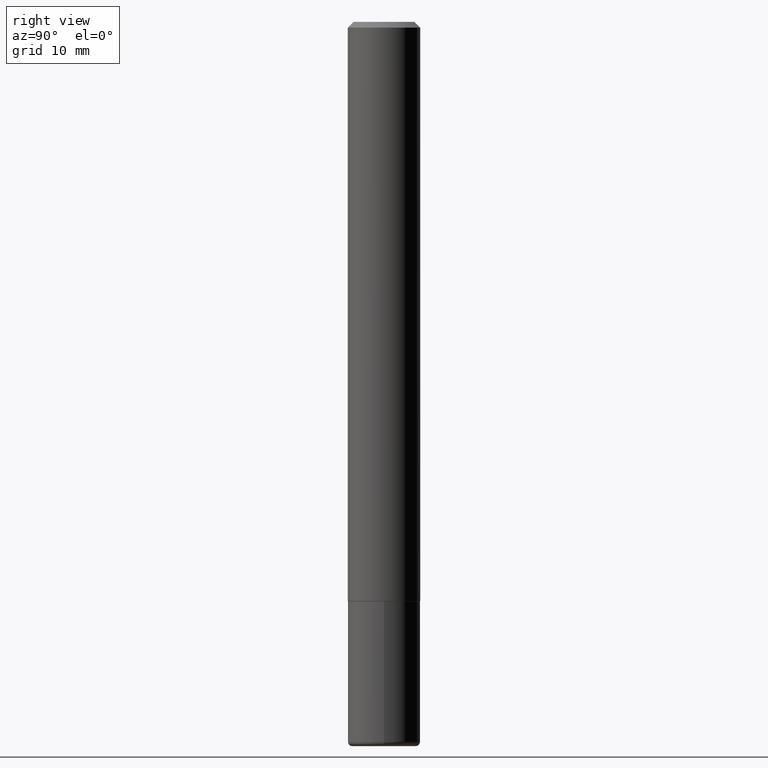
[diagram: clean part render]
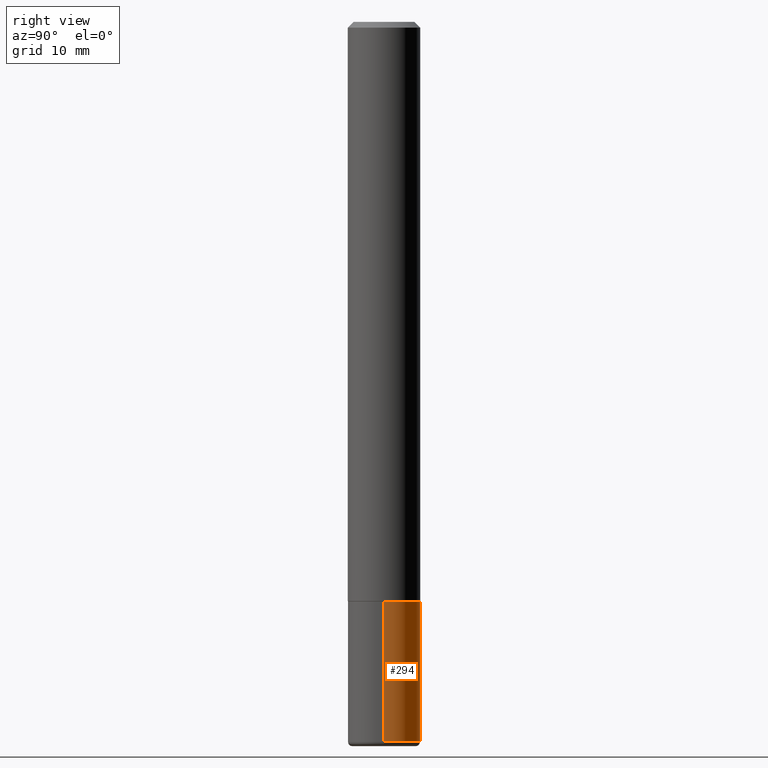
[diagram: same view with one face highlighted and labeled with its STEP entity id]
A machine part, right view. The second image highlights one B-rep face of the part: STEP entity #294.
In plain terms, the highlighted cylindrical surface (edge-blend (fillet) strip) has radius 3.175 mm, axis along (-0, 0, 1).
Its self-contained STEP definition (entity closure, byte-faithful):
#23 = EDGE_CURVE ( 'NONE', #291, #413, #374, .T. ) ;
#24 = FACE_OUTER_BOUND ( 'NONE', #112, .T. ) ;
#26 = VERTEX_POINT ( 'NONE', #361 ) ;
#44 = AXIS2_PLACEMENT_3D ( 'NONE', #274, #301, #146 ) ;
#65 = AXIS2_PLACEMENT_3D ( 'NONE', #245, #340, #405 ) ;
#74 = AXIS2_PLACEMENT_3D ( 'NONE', #402, #255, #100 ) ;
#88 = CARTESIAN_POINT ( 'NONE',  ( -0.1250000000000000000, 8.881784197001252323E-16, -6.148668862818632227E-30 ) ) ;
#100 = DIRECTION ( 'NONE',  ( 1.000000000000000000, -6.982962677686271444E-15, 0.000000000000000000 ) ) ;
#111 = VECTOR ( 'NONE', #335, 39.37007874015748143 ) ;
#112 = EDGE_LOOP ( 'NONE', ( #201, #191, #134, #327 ) ) ;
#134 = ORIENTED_EDGE ( 'NONE', *, *, #235, .F. ) ;
#145 = CYLINDRICAL_SURFACE ( 'NONE', #65, 0.1250000000000000000 ) ;
#146 = DIRECTION ( 'NONE',  ( 1.000000000000000000, -6.982962677686270655E-15, 0.000000000000000000 ) ) ;
#182 = CARTESIAN_POINT ( 'NONE',  ( 0.1250000000000000555, -9.549201461736000019E-15, -2.484999999999999876 ) ) ;
#191 = ORIENTED_EDGE ( 'NONE', *, *, #23, .T. ) ;
#201 = ORIENTED_EDGE ( 'NONE', *, *, #326, .T. ) ;
#203 = CARTESIAN_POINT ( 'NONE',  ( 0.1250000000000000000, -8.728703347107833388E-16, 6.095220969744919741E-30 ) ) ;
#235 = EDGE_CURVE ( 'NONE', #26, #413, #379, .T. ) ;
#242 = EDGE_CURVE ( 'NONE', #254, #26, #273, .T. ) ;
#243 = DIRECTION ( 'NONE',  ( -2.445468806185136877E-29, 3.491481338843145188E-15, 1.000000000000000000 ) ) ;
#245 = CARTESIAN_POINT ( 'NONE',  ( 0.000000000000000000, 0.000000000000000000, 0.000000000000000000 ) ) ;
#254 = VERTEX_POINT ( 'NONE', #182 ) ;
#255 = DIRECTION ( 'NONE',  ( -2.445468806185136597E-29, 3.491481338843145583E-15, 1.000000000000000000 ) ) ;
#271 = CARTESIAN_POINT ( 'NONE',  ( -0.1250000000000000555, -7.788152707325091448E-15, -2.484999999999999876 ) ) ;
#273 = LINE ( 'NONE', #203, #111 ) ;
#274 = CARTESIAN_POINT ( 'NONE',  ( 4.890937612370273194E-29, -6.982962677686291165E-15, -2.000000000000000000 ) ) ;
#282 = CIRCLE ( 'NONE', #74, 0.1249999999999999861 ) ;
#291 = VERTEX_POINT ( 'NONE', #271 ) ;
#294 = ADVANCED_FACE ( 'NONE', ( #24 ), #145, .T. ) ;
#301 = DIRECTION ( 'NONE',  ( -2.445468806185136597E-29, 3.491481338843145583E-15, 1.000000000000000000 ) ) ;
#326 = EDGE_CURVE ( 'NONE', #254, #291, #282, .T. ) ;
#327 = ORIENTED_EDGE ( 'NONE', *, *, #242, .F. ) ;
#335 = DIRECTION ( 'NONE',  ( -2.445468806185136877E-29, 3.491481338843145188E-15, 1.000000000000000000 ) ) ;
#338 = CARTESIAN_POINT ( 'NONE',  ( -0.1250000000000000000, -6.941468482655628296E-15, -2.000000000000000000 ) ) ;
#340 = DIRECTION ( 'NONE',  ( -2.445468806185136597E-29, 3.491481338843145583E-15, 1.000000000000000000 ) ) ;
#361 = CARTESIAN_POINT ( 'NONE',  ( 0.1250000000000000000, -7.855833012397075293E-15, -2.000000000000000000 ) ) ;
#374 = LINE ( 'NONE', #88, #409 ) ;
#379 = CIRCLE ( 'NONE', #44, 0.1250000000000000000 ) ;
#402 = CARTESIAN_POINT ( 'NONE',  ( 6.076989983370064174E-29, -8.676331127025216680E-15, -2.484999999999999876 ) ) ;
#405 = DIRECTION ( 'NONE',  ( 1.000000000000000000, -6.982962677686266711E-15, 4.876176775795935793E-29 ) ) ;
#409 = VECTOR ( 'NONE', #243, 39.37007874015748143 ) ;
#413 = VERTEX_POINT ( 'NONE', #338 ) ;